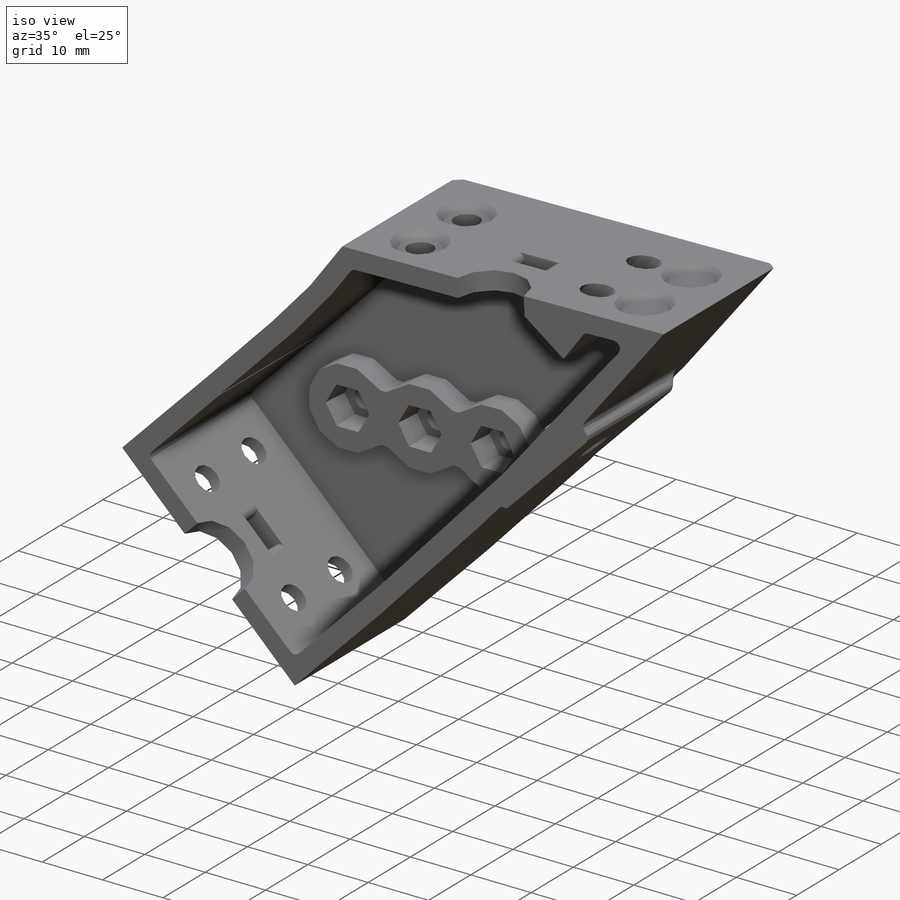
[diagram: iso view]
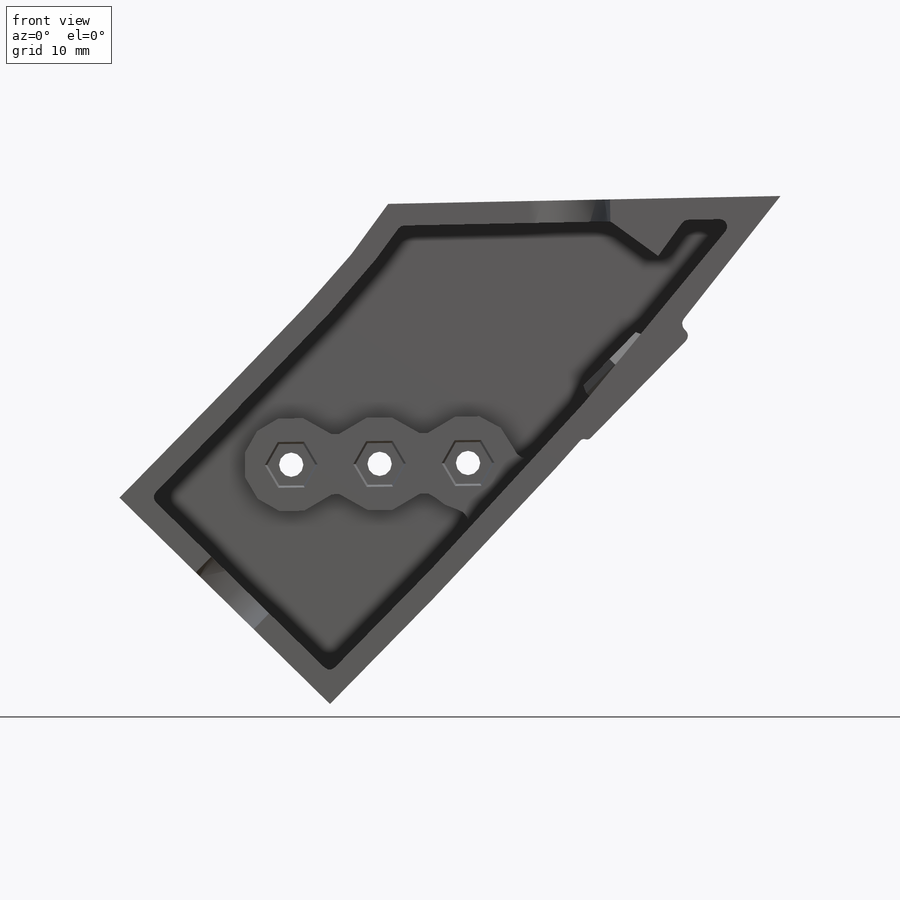
[diagram: front view]
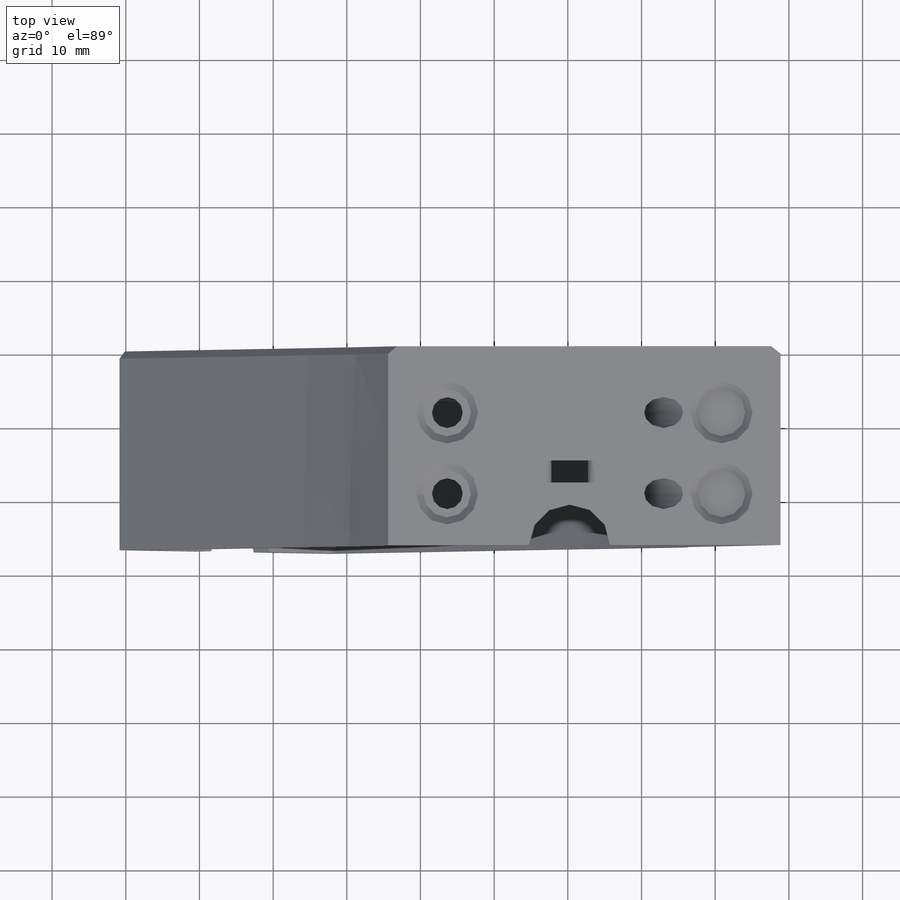
[diagram: top view]
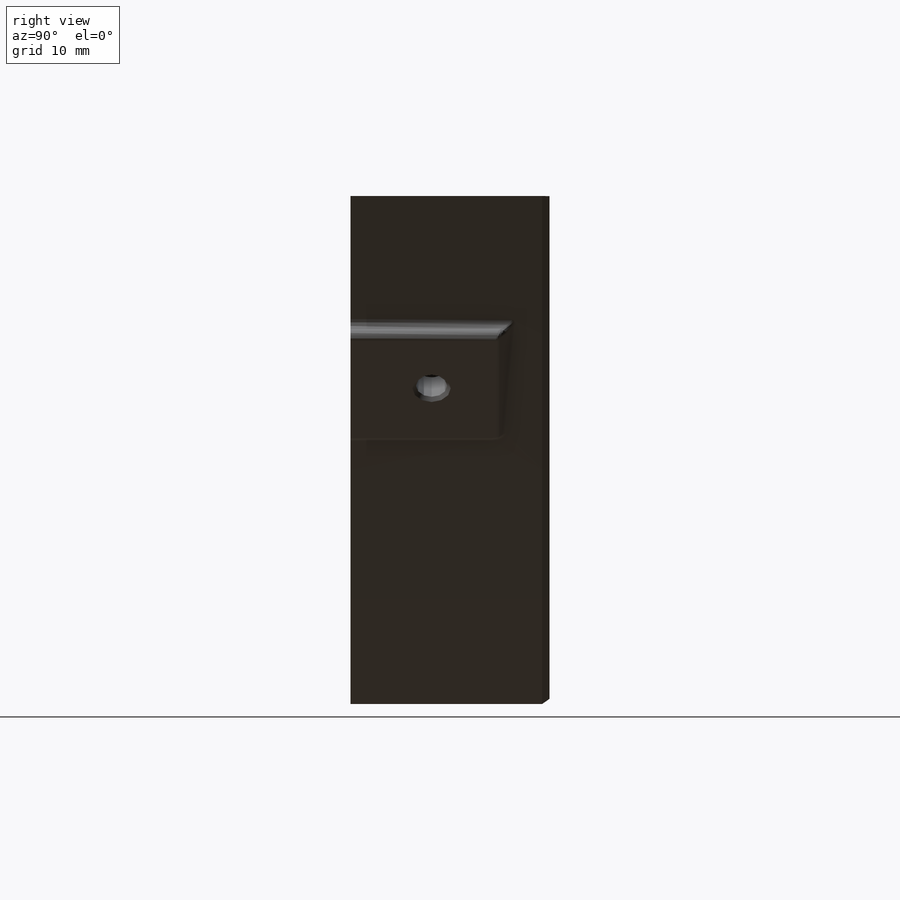
[diagram: right view]
SOLIDWORKS PART (.sldprt)
format: sldprt  version: not decoded by parser v0  size: 4,875,776 bytes
history: native  units: mm
features: sketch x6, cut_extrude x5, fillet x2, material x1, extrude x1 (+16 scaffold rows collapsed; 3 parser-record rows omitted)
feature tree (34):
  scaffold x16  (default folders/planes/origin — collapsed)
  material  "Material <not specified>"
  parser-record x3  (decoder bookkeeping rows leaked as tree rows — omitted from the tree; the rows remain in map.json)
  sketch  "Sketch2"  dims[c1.D1=3.3mm c1.D4=~3.193377mm c1.D6=~6.338972mm c1.D2=25.0mm c1.D3=19.0mm c2.D4=12.0mm c2.D5=~9.973289mm c3.D5=45.0deg c3.D6=~34.614588mm]
  cut_extrude  "Cut-Bed Clip Hole"  [1 undecoded]
  sketch  "Sketch1"  dims[D1=13.0mm D2=~16.592428mm]
  extrude  "Boss-Nut Boss"  Depth=4mm
  sketch  "Sketch21"  dims[Width=5.65mm]
  cut_extrude  "Cut-Extrude11"  [1 undecoded]
  sketch  "Sketch24"  dims[D1=3.0mm D2=5.0mm]
  cut_extrude  "Cut-Extrude13"  [1 undecoded]
  sketch  "Sketch26"  dims[D1=3.0mm D2=5.0mm]
  cut_extrude  "Cut-Extrude14"  [1 undecoded]
  sketch  "Sketch27"  dims[D1=5.65mm]
  cut_extrude  "Cut-Extrude15"  Depth=4mm
  fillet  "Fillet2"  Radius=2mm
  fillet  "Fillet3"  Radius=1mm
decode coverage: 10 of 14 modeling features carry decoded parameters
note: ~ marks probable driven/reference dimensions
note: 4 parameter values undecoded
summary: no parameter record found for 4 features
note: suppression state not decoded; provenance and decode notes live in map.json
